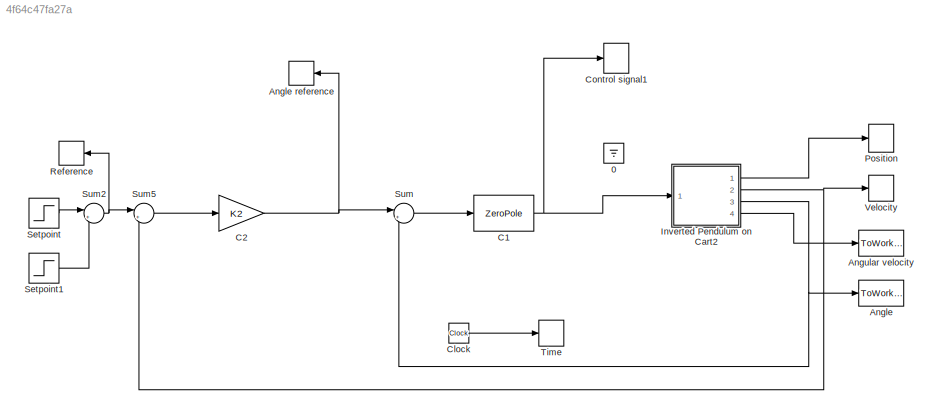
MODEL slx_4f64c47fa27a
KIND model
CONFIG AbsTol = auto
CONFIG FixedStep = auto
CONFIG MaxStep = auto
CONFIG MinStep = auto
CONFIG RelTol = 1e-3
CONFIG SampleTimeConstraint = Unconstrained
CONFIG Solver = ode45
CONFIG SolverMode = Auto
CONFIG SolverName = ode45
CONFIG StartTime = 0.0
CONFIG StopTime = tsim
BLOCK [Ground] 0
BLOCK [ToWorkspace] Angle
  MaxDataPoints = inf
  Ports = [1]
  SampleTime = -1
  VariableName = theta
BLOCK [ToWorkspace] Angle reference
  MaxDataPoints = inf
  Ports = [1]
  SampleTime = -1
  VariableName = ri
BLOCK [ToWorkspace] Angular velocity
  MaxDataPoints = inf
  Ports = [1]
  SampleTime = -1
  VariableName = omega
BLOCK [ZeroPole] C1
  Gain = [K1]
  Poles = [-p1]
  Zeros = [-p]
BLOCK [Gain] C2
  Gain = K2
  OutDataTypeStr = Inherit: Inherit via internal rule
  ParamDataTypeStr = Inherit: Inherit via internal rule
  SaturateOnIntegerOverflow = off
BLOCK [Clock] Clock
BLOCK [ToWorkspace] Control signal1
  MaxDataPoints = inf
  Ports = [1]
  SampleTime = -1
  VariableName = u
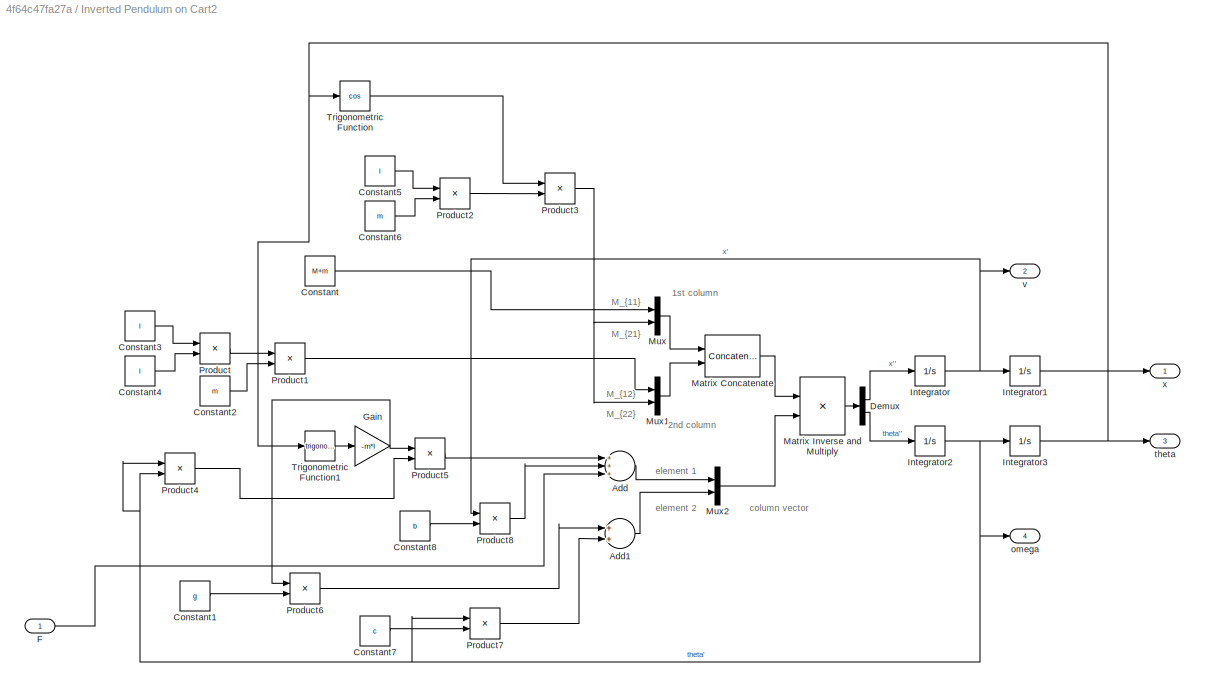
BLOCK [SubSystem] Inverted Pendulum on Cart2
  Ports = [1, 4]
  RequestExecContextInheritance = off
  Variant = off
BLOCK [Sum] Inverted Pendulum on Cart2/Add
  InputSameDT = off
  Inputs = +++
  OutDataTypeStr = Inherit: Inherit via internal rule
  Ports = [3, 1]
  SaturateOnIntegerOverflow = off
BLOCK [Sum] Inverted Pendulum on Cart2/Add1
  InputSameDT = off
  OutDataTypeStr = Inherit: Inherit via internal rule
  Ports = [2, 1]
  SaturateOnIntegerOverflow = off
BLOCK [Constant] Inverted Pendulum on Cart2/Constant
  Value = M+m
BLOCK [Constant] Inverted Pendulum on Cart2/Constant1
  Value = g
BLOCK [Constant] Inverted Pendulum on Cart2/Constant2
  Value = m
BLOCK [Constant] Inverted Pendulum on Cart2/Constant3
  Value = l
BLOCK [Constant] Inverted Pendulum on Cart2/Constant4
  Value = l
BLOCK [Constant] Inverted Pendulum on Cart2/Constant5
  Value = l
BLOCK [Constant] Inverted Pendulum on Cart2/Constant6
  Value = m
BLOCK [Constant] Inverted Pendulum on Cart2/Constant7
  Value = c
BLOCK [Constant] Inverted Pendulum on Cart2/Constant8
  Value = b
BLOCK [Demux] Inverted Pendulum on Cart2/Demux
  DisplayOption = bar
  Outputs = 2
  Ports = [1, 2]
BLOCK [Inport] Inverted Pendulum on Cart2/F
  IconDisplay = Port number
BLOCK [Gain] Inverted Pendulum on Cart2/Gain
  Gain = -m*l
  OutDataTypeStr = Inherit: Inherit via internal rule
  ParamDataTypeStr = Inherit: Inherit via internal rule
  SaturateOnIntegerOverflow = off
BLOCK [Integrator] Inverted Pendulum on Cart2/Integrator
  Ports = [1, 1]
BLOCK [Integrator] Inverted Pendulum on Cart2/Integrator1
  Ports = [1, 1]
BLOCK [Integrator] Inverted Pendulum on Cart2/Integrator2
  Ports = [1, 1]
BLOCK [Integrator] Inverted Pendulum on Cart2/Integrator3
  InitialCondition = theta0
  Ports = [1, 1]
BLOCK [Concatenate] Inverted Pendulum on Cart2/Matrix Concatenate
  ConcatenateDimension = 2
  Mode = Multidimensional array
  Ports = [2, 1]
BLOCK [Product] Inverted Pendulum on Cart2/Matrix Inverse and Multiply
  InputSameDT = off
  Inputs = /*
  Multiplication = Matrix(*)
  OutDataTypeStr = Inherit: Inherit via internal rule
  Ports = [2, 1]
  RndMeth = Floor
  SaturateOnIntegerOverflow = off
BLOCK [Mux] Inverted Pendulum on Cart2/Mux
  DisplayOption = bar
  Inputs = 2
  Ports = [2, 1]
BLOCK [Mux] Inverted Pendulum on Cart2/Mux1
  DisplayOption = bar
  Inputs = 2
  Ports = [2, 1]
BLOCK [Mux] Inverted Pendulum on Cart2/Mux2
  DisplayOption = bar
  Inputs = 2
  Ports = [2, 1]
BLOCK [Product] Inverted Pendulum on Cart2/Product
  InputSameDT = off
  OutDataTypeStr = Inherit: Inherit via internal rule
  Ports = [2, 1]
  RndMeth = Floor
  SaturateOnIntegerOverflow = off
BLOCK [Product] Inverted Pendulum on Cart2/Product1
  InputSameDT = off
  OutDataTypeStr = Inherit: Inherit via internal rule
  Ports = [2, 1]
  RndMeth = Floor
  SaturateOnIntegerOverflow = off
BLOCK [Product] Inverted Pendulum on Cart2/Product2
  InputSameDT = off
  OutDataTypeStr = Inherit: Inherit via internal rule
  Ports = [2, 1]
  RndMeth = Floor
  SaturateOnIntegerOverflow = off
BLOCK [Product] Inverted Pendulum on Cart2/Product3
  InputSameDT = off
  OutDataTypeStr = Inherit: Inherit via internal rule
  Ports = [2, 1]
  RndMeth = Floor
  SaturateOnIntegerOverflow = off
BLOCK [Product] Inverted Pendulum on Cart2/Product4
  InputSameDT = off
  OutDataTypeStr = Inherit: Inherit via internal rule
  Ports = [2, 1]
  RndMeth = Floor
  SaturateOnIntegerOverflow = off
BLOCK [Product] Inverted Pendulum on Cart2/Product5
  InputSameDT = off
  OutDataTypeStr = Inherit: Inherit via internal rule
  Ports = [2, 1]
  RndMeth = Floor
  SaturateOnIntegerOverflow = off
BLOCK [Product] Inverted Pendulum on Cart2/Product6
  InputSameDT = off
  OutDataTypeStr = Inherit: Inherit via internal rule
  Ports = [2, 1]
  RndMeth = Floor
  SaturateOnIntegerOverflow = off
BLOCK [Product] Inverted Pendulum on Cart2/Product7
  InputSameDT = off
  OutDataTypeStr = Inherit: Inherit via internal rule
  Ports = [2, 1]
  RndMeth = Floor
  SaturateOnIntegerOverflow = off
BLOCK [Product] Inverted Pendulum on Cart2/Product8
  InputSameDT = off
  OutDataTypeStr = Inherit: Inherit via internal rule
  Ports = [2, 1]
  RndMeth = Floor
  SaturateOnIntegerOverflow = off
BLOCK [Trigonometry] Inverted Pendulum on Cart2/Trigonometric Function
  Operator = cos
  Ports = [1, 1]
BLOCK [Trigonometry] Inverted Pendulum on Cart2/Trigonometric Function1
  Ports = [1, 1]
BLOCK [Outport] Inverted Pendulum on Cart2/omega
  IconDisplay = Port number
  Port = 4
BLOCK [Outport] Inverted Pendulum on Cart2/theta
  IconDisplay = Port number
  Port = 3
BLOCK [Outport] Inverted Pendulum on Cart2/v
  IconDisplay = Port number
  Port = 2
BLOCK [Outport] Inverted Pendulum on Cart2/x
  IconDisplay = Port number
BLOCK [ToWorkspace] Position
  MaxDataPoints = inf
  Ports = [1]
  SampleTime = -1
  VariableName = x
BLOCK [ToWorkspace] Reference
  MaxDataPoints = inf
  Ports = [1]
  SampleTime = -1
  VariableName = r
BLOCK [Step] Setpoint
  After = 0.5
  SampleTime = 0
  Time = 10
BLOCK [Step] Setpoint1
  After = -0.5
  SampleTime = 0
  Time = 20
BLOCK [Sum] Sum
  IconShape = round
  InputSameDT = off
  Inputs = |+-
  OutDataTypeStr = Inherit: Inherit via internal rule
  Ports = [2, 1]
  SaturateOnIntegerOverflow = off
BLOCK [Sum] Sum2
  IconShape = round
  InputSameDT = off
  Inputs = |++
  OutDataTypeStr = Inherit: Inherit via internal rule
  Ports = [2, 1]
  SaturateOnIntegerOverflow = off
BLOCK [Sum] Sum5
  IconShape = round
  InputSameDT = off
  Inputs = |+-
  OutDataTypeStr = Inherit: Inherit via internal rule
  Ports = [2, 1]
  SaturateOnIntegerOverflow = off
BLOCK [ToWorkspace] Time
  MaxDataPoints = inf
  Ports = [1]
  SampleTime = -1
  VariableName = t
BLOCK [ToWorkspace] Velocity
  MaxDataPoints = inf
  Ports = [1]
  SampleTime = -1
  VariableName = v
ANNOTATION Inverted Pendulum on Cart2: 1st column
ANNOTATION Inverted Pendulum on Cart2: 2nd column
ANNOTATION Inverted Pendulum on Cart2: M_{11}
ANNOTATION Inverted Pendulum on Cart2: M_{12}
ANNOTATION Inverted Pendulum on Cart2: M_{21}
ANNOTATION Inverted Pendulum on Cart2: M_{22}
ANNOTATION Inverted Pendulum on Cart2: column vector
ANNOTATION Inverted Pendulum on Cart2: element 1
ANNOTATION Inverted Pendulum on Cart2: element 2
NET C1:1 -> Control signal1:1, Inverted Pendulum on Cart2:1
NET C2:1 -> Angle reference:1, Sum:1
LINE Clock:1 -> Time:1
LINE Inverted Pendulum on Cart2/Add1:1 -> Inverted Pendulum on Cart2/Mux2:2
LINE Inverted Pendulum on Cart2/Add:1 -> Inverted Pendulum on Cart2/Mux2:1
LINE Inverted Pendulum on Cart2/Constant1:1 -> Inverted Pendulum on Cart2/Product6:2
LINE Inverted Pendulum on Cart2/Constant2:1 -> Inverted Pendulum on Cart2/Product1:2
LINE Inverted Pendulum on Cart2/Constant3:1 -> Inverted Pendulum on Cart2/Product:1
LINE Inverted Pendulum on Cart2/Constant4:1 -> Inverted Pendulum on Cart2/Product:2
LINE Inverted Pendulum on Cart2/Constant5:1 -> Inverted Pendulum on Cart2/Product2:1
LINE Inverted Pendulum on Cart2/Constant6:1 -> Inverted Pendulum on Cart2/Product2:2
LINE Inverted Pendulum on Cart2/Constant7:1 -> Inverted Pendulum on Cart2/Product7:2
LINE Inverted Pendulum on Cart2/Constant8:1 -> Inverted Pendulum on Cart2/Product8:2
LINE Inverted Pendulum on Cart2/Constant:1 -> Inverted Pendulum on Cart2/Mux:1
LINE Inverted Pendulum on Cart2/Demux:1 -> Inverted Pendulum on Cart2/Integrator:1
LINE Inverted Pendulum on Cart2/Demux:2 -> Inverted Pendulum on Cart2/Integrator2:1
LINE Inverted Pendulum on Cart2/F:1 -> Inverted Pendulum on Cart2/Add:3
NET Inverted Pendulum on Cart2/Gain:1 -> Inverted Pendulum on Cart2/Product5:1, Inverted Pendulum on Cart2/Product6:1
LINE Inverted Pendulum on Cart2/Integrator1:1 -> Inverted Pendulum on Cart2/x:1
NET Inverted Pendulum on Cart2/Integrator2:1 -> Inverted Pendulum on Cart2/Integrator3:1, Inverted Pendulum on Cart2/Product4:1, Inverted Pendulum on Cart2/Product4:2, Inverted Pendulum on Cart2/Product7:1, Inverted Pendulum on Cart2/omega:1
NET Inverted Pendulum on Cart2/Integrator3:1 -> Inverted Pendulum on Cart2/Trigonometric Function1:1, Inverted Pendulum on Cart2/Trigonometric Function:1, Inverted Pendulum on Cart2/theta:1
NET Inverted Pendulum on Cart2/Integrator:1 -> Inverted Pendulum on Cart2/Integrator1:1, Inverted Pendulum on Cart2/Product8:1, Inverted Pendulum on Cart2/v:1
LINE Inverted Pendulum on Cart2/Matrix Concatenate:1 -> Inverted Pendulum on Cart2/Matrix Inverse and Multiply:1
LINE Inverted Pendulum on Cart2/Matrix Inverse and Multiply:1 -> Inverted Pendulum on Cart2/Demux:1
LINE Inverted Pendulum on Cart2/Mux1:1 -> Inverted Pendulum on Cart2/Matrix Concatenate:2
LINE Inverted Pendulum on Cart2/Mux2:1 -> Inverted Pendulum on Cart2/Matrix Inverse and Multiply:2
LINE Inverted Pendulum on Cart2/Mux:1 -> Inverted Pendulum on Cart2/Matrix Concatenate:1
LINE Inverted Pendulum on Cart2/Product1:1 -> Inverted Pendulum on Cart2/Mux1:1
LINE Inverted Pendulum on Cart2/Product2:1 -> Inverted Pendulum on Cart2/Product3:2
NET Inverted Pendulum on Cart2/Product3:1 -> Inverted Pendulum on Cart2/Mux1:2, Inverted Pendulum on Cart2/Mux:2
LINE Inverted Pendulum on Cart2/Product4:1 -> Inverted Pendulum on Cart2/Product5:2
LINE Inverted Pendulum on Cart2/Product5:1 -> Inverted Pendulum on Cart2/Add:1
LINE Inverted Pendulum on Cart2/Product6:1 -> Inverted Pendulum on Cart2/Add1:1
LINE Inverted Pendulum on Cart2/Product7:1 -> Inverted Pendulum on Cart2/Add1:2
LINE Inverted Pendulum on Cart2/Product8:1 -> Inverted Pendulum on Cart2/Add:2
LINE Inverted Pendulum on Cart2/Product:1 -> Inverted Pendulum on Cart2/Product1:1
LINE Inverted Pendulum on Cart2/Trigonometric Function1:1 -> Inverted Pendulum on Cart2/Gain:1
LINE Inverted Pendulum on Cart2/Trigonometric Function:1 -> Inverted Pendulum on Cart2/Product3:1
LINE Inverted Pendulum on Cart2:1 -> Position:1
NET Inverted Pendulum on Cart2:2 -> Sum5:2, Velocity:1
NET Inverted Pendulum on Cart2:3 -> Angle:1, Sum:2
LINE Inverted Pendulum on Cart2:4 -> Angular velocity:1
LINE Setpoint1:1 -> Sum2:2
LINE Setpoint:1 -> Sum2:1
NET Sum2:1 -> Reference:1, Sum5:1
LINE Sum5:1 -> C2:1
LINE Sum:1 -> C1:1
note: NET lines group one-source signal fan-out (src -> all destinations, sorted); 1:1 wires keep LINE
